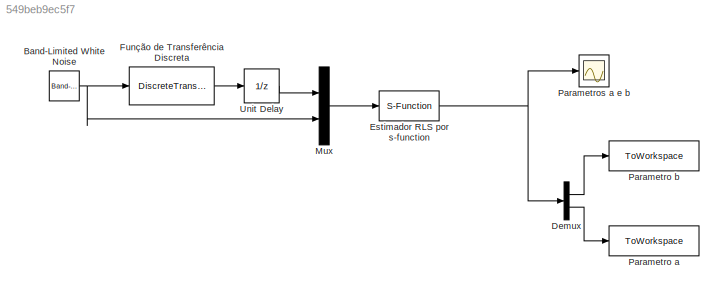
MODEL slx_549beb9ec5f7
KIND model
CONFIG AbsTol = auto
CONFIG EnableMultiTasking = off
CONFIG FixedStep = auto
CONFIG MaxStep = auto
CONFIG MinStep = auto
CONFIG RelTol = 1e-3
CONFIG SampleTimeConstraint = Unconstrained
CONFIG SolverName = VariableStepAuto
CONFIG StartTime = 0.0
CONFIG StopTime = 200
BLOCK [Reference] Band-Limited White Noise  REF=simulink/Sources/Band-Limited
White Noise
  Ports = [0, 1]
  SourceBlock = simulink/Sources/Band-Limited\nWhite Noise
  SourceProductBaseCode = SL
  SourceType = Band-Limited White Noise.
BLOCK [Demux] Demux
  Outputs = 2
  Ports = [1, 2]
BLOCK [S-Function] Estimador RLS por s-function
  EnableBusSupport = off
  FunctionName = rlsaa2
  Ports = [1, 1]
  SFcnIsStateOwnerBlock = off
  SFunctionDeploymentMode = off
BLOCK [DiscreteTransferFcn] Função de Transferência Discreta
  Denominator = [1   -0.8187]
  InitialStates = 1
  InputPortMap = u0
  Numerator = 0.1813
  Ports = [1, 1]
BLOCK [Mux] Mux
  DisplayOption = bar
  Inputs = 2
  Ports = [2, 1]
BLOCK [ToWorkspace] Parametro a
  FixptAsFi = on
  MaxDataPoints = inf
  Ports = [1]
  SampleTime = -1
  VariableName = a
BLOCK [ToWorkspace] Parametro b
  FixptAsFi = on
  MaxDataPoints = inf
  Ports = [1]
  SampleTime = -1
  VariableName = b
BLOCK [Scope] Parametros a e b
  Floating = off
  NumInputPorts = 1
  Ports = [1]
  ScopeSpecificationString = Simulink.scopes.TimeScopeBlockCfg('CurrentConfiguration', extmgr.ConfigurationSet(extmgr.Configuration('Core','General UI',true),extmgr.Configuration('Core','Source UI',true),extmgr.Configuration('Sources','WiredSimulink',true),extmgr.Configuration('Visuals','Time Domain',true,'SerializedDisplays',{struct('MinYLimReal','0.07573','MaxYLimReal','1.1027','YLabelReal','','MinYLimMag','0.07573','MaxYLi...<+1463ch>
BLOCK [UnitDelay] Unit Delay
  HasFrameUpgradeWarning = on
  SampleTime = -1
NET Band-Limited White Noise:1 -> Função de Transferência Discreta:1, Mux:2
LINE Demux:1 -> Parametro b:1
LINE Demux:2 -> Parametro a:1
NET Estimador RLS por s-function:1 -> Demux:1, Parametros a e b:1
LINE Função de Transferência Discreta:1 -> Unit Delay:1
LINE Mux:1 -> Estimador RLS por s-function:1
LINE Unit Delay:1 -> Mux:1
note: NET lines group one-source signal fan-out (src -> all destinations, sorted); 1:1 wires keep LINE
